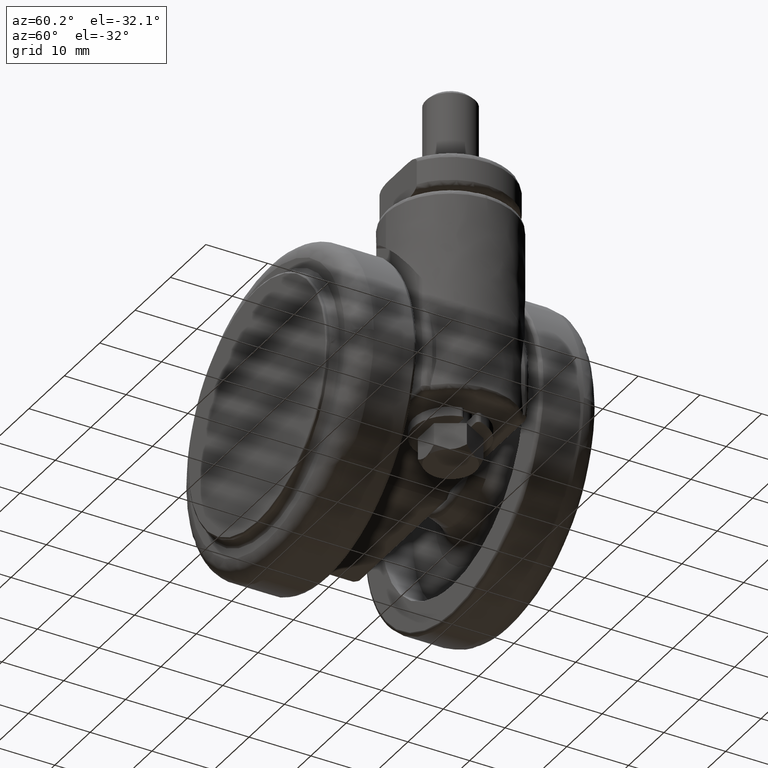
[diagram: clean part render]
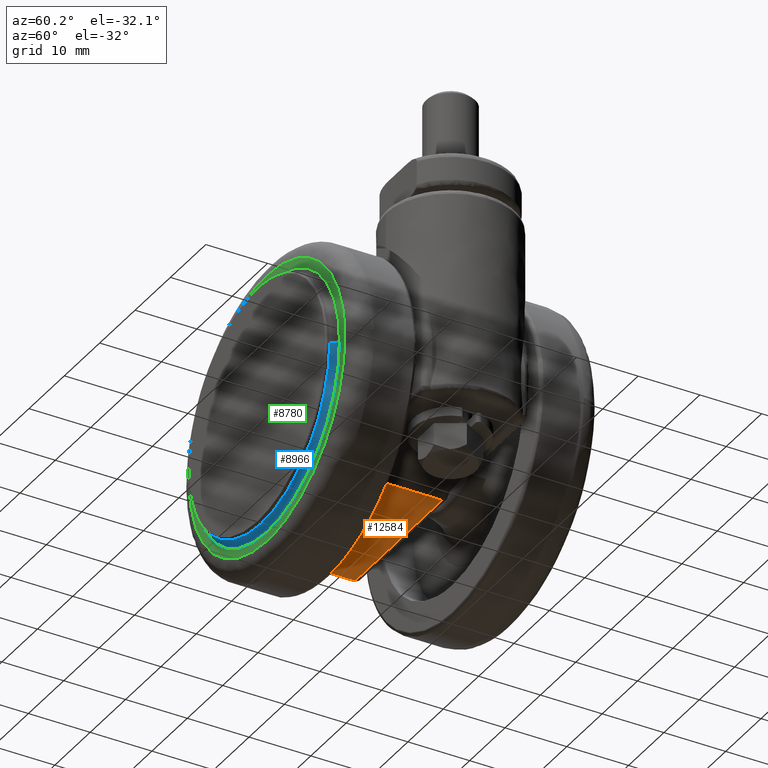
[diagram: same view with three faces highlighted in distinct colors, each labeled with its STEP entity id]
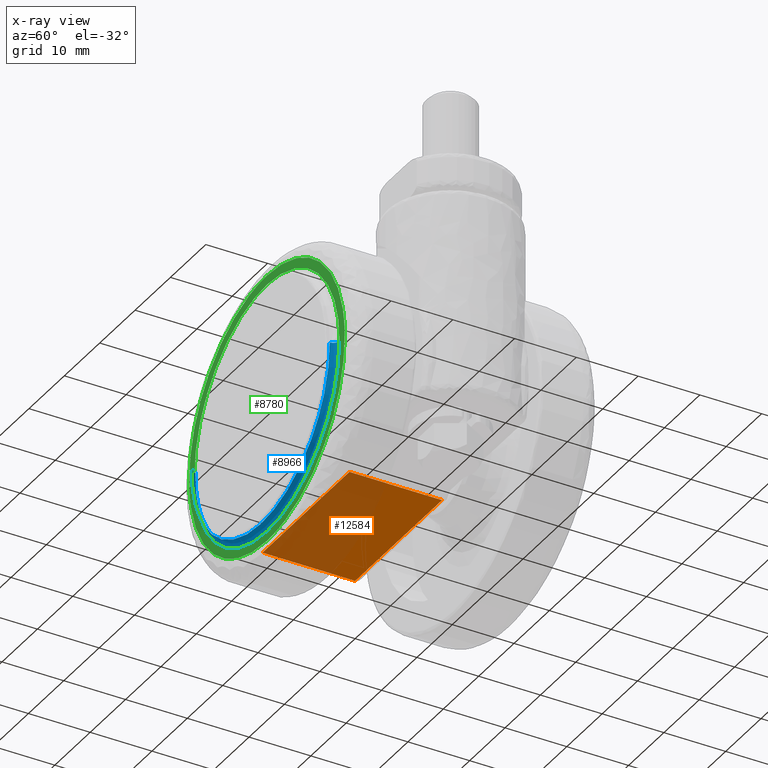
[diagram: x-ray of the same camera — body ghosted, the three highlighted faces saturated]
A machine part, auxiliary view with three faces highlighted in distinct colors.
The next image is the same camera in x-ray (body ghosted, the three faces saturated) — at least one of them is partly hidden behind the body in this view.
Their STEP definitions:

[orange] entity #12584 — the highlighted face is a freeform B-spline surface patch.
#12535=CARTESIAN_POINT('',(1.500000000000000,-7.500000000000000,-7.500000000000000));
#12536=VERTEX_POINT('',#12535);
#12542=CARTESIAN_POINT('',(1.500000000000000,7.500000000000000,-7.500000000000000));
#12543=VERTEX_POINT('',#12542);
#12544=CARTESIAN_POINT('',(1.500000000000000,7.500000000000000,-7.500000000000000));
#12545=CARTESIAN_POINT('',(1.500000000000000,-7.500000000000000,-7.500000000000000));
#12546=QUASI_UNIFORM_CURVE('',1,(#12544,#12545),.UNSPECIFIED.,.F.,.U.);
#12547=EDGE_CURVE('',#12543,#12536,#12546,.T.);
#12557=CARTESIAN_POINT('',(2.728921306024129,-8.249249970927089,-7.500000000000000));
#12558=CARTESIAN_POINT('',(-24.331952070224670,-8.249249970927089,-7.500000000000000));
#12559=CARTESIAN_POINT('',(2.728921306024129,8.249250373258443,-7.500000000000000));
#12560=CARTESIAN_POINT('',(-24.331952070224670,8.249250373258443,-7.500000000000000));
#12561=B_SPLINE_SURFACE_WITH_KNOTS('',1,1,((#12557,#12559),(#12558,#12560)),.UNSPECIFIED.,.F.,.F.,.U.,(2,2),(2,2),(0.0,27.060873376248800),(0.0,16.498500344185530),.UNSPECIFIED.);
#12562=CARTESIAN_POINT('',(-23.103030104295851,-7.500000000000000,-7.500000000000000));
#12563=VERTEX_POINT('',#12562);
#12564=CARTESIAN_POINT('',(-23.103030104295851,7.500000000000000,-7.500000000000000));
#12565=VERTEX_POINT('',#12564);
#12566=CARTESIAN_POINT('',(-23.103030104295851,-7.500000000000000,-7.500000000000000));
#12567=CARTESIAN_POINT('',(-23.103030104295851,7.500000000000000,-7.500000000000000));
#12568=QUASI_UNIFORM_CURVE('',1,(#12566,#12567),.UNSPECIFIED.,.F.,.U.);
#12569=EDGE_CURVE('',#12563,#12565,#12568,.T.);
#12570=ORIENTED_EDGE('',*,*,#12569,.T.);
#12571=CARTESIAN_POINT('',(-23.103030104295851,7.500000000000000,-7.500000000000000));
#12572=CARTESIAN_POINT('',(1.500000000000000,7.500000000000000,-7.500000000000000));
#12573=QUASI_UNIFORM_CURVE('',1,(#12571,#12572),.UNSPECIFIED.,.F.,.U.);
#12574=EDGE_CURVE('',#12565,#12543,#12573,.T.);
#12575=ORIENTED_EDGE('',*,*,#12574,.T.);
#12576=ORIENTED_EDGE('',*,*,#12547,.T.);
#12577=CARTESIAN_POINT('',(1.500000000000000,-7.500000000000000,-7.500000000000000));
#12578=CARTESIAN_POINT('',(-23.103030104295851,-7.500000000000000,-7.500000000000000));
#12579=QUASI_UNIFORM_CURVE('',1,(#12577,#12578),.UNSPECIFIED.,.F.,.U.);
#12580=EDGE_CURVE('',#12536,#12563,#12579,.T.);
#12581=ORIENTED_EDGE('',*,*,#12580,.T.);
#12582=EDGE_LOOP('',(#12570,#12575,#12576,#12581));
#12583=FACE_OUTER_BOUND('',#12582,.T.);
#12584=ADVANCED_FACE('',(#12583),#12561,.T.);

[blue] entity #8966 — the highlighted face is a freeform B-spline surface patch.
#8720=CARTESIAN_POINT('',(20.499999998863380,-20.0,8.874474E-016));
#8721=VERTEX_POINT('',#8720);
#8735=CARTESIAN_POINT('',(0.0,-20.0,-20.500000000000000));
#8736=VERTEX_POINT('',#8735);
#8737=CARTESIAN_POINT('',(20.499999998863380,-20.0,8.874474E-016));
#8738=CARTESIAN_POINT('',(20.499999999431690,-19.999999999999996,-20.500000000000007));
#8739=CARTESIAN_POINT('',(0.0,-20.0,-20.500000000000000));
#8747=(BOUNDED_CURVE()B_SPLINE_CURVE(2,(#8737,#8738,#8739),.UNSPECIFIED.,.F.,.U.)B_SPLINE_CURVE_WITH_KNOTS((3,3),(0.250000000000000,0.500000000000000),.UNSPECIFIED.)CURVE()GEOMETRIC_REPRESENTATION_ITEM()RATIONAL_B_SPLINE_CURVE((1.0,0.707106781186548,1.0))REPRESENTATION_ITEM(''));
#8748=EDGE_CURVE('',#8721,#8736,#8747,.T.);
#8750=CARTESIAN_POINT('',(-20.499999998863380,-20.0,-1.774895E-015));
#8751=VERTEX_POINT('',#8750);
#8752=CARTESIAN_POINT('',(0.0,-20.0,-20.500000000000000));
#8753=CARTESIAN_POINT('',(-20.499999999431690,-19.999999999999996,-20.500000000000007));
#8754=CARTESIAN_POINT('',(-20.499999998863380,-20.0,-1.774895E-015));
#8762=(BOUNDED_CURVE()B_SPLINE_CURVE(2,(#8752,#8753,#8754),.UNSPECIFIED.,.F.,.U.)B_SPLINE_CURVE_WITH_KNOTS((3,3),(0.500000000000000,0.750000000000000),.UNSPECIFIED.)CURVE()GEOMETRIC_REPRESENTATION_ITEM()RATIONAL_B_SPLINE_CURVE((1.0,0.707106781186548,1.0))REPRESENTATION_ITEM(''));
#8763=EDGE_CURVE('',#8736,#8751,#8762,.T.);
#8811=CARTESIAN_POINT('',(-19.500000000000000,-20.999999999800739,-1.774830E-015));
#8812=VERTEX_POINT('',#8811);
#8813=CARTESIAN_POINT('',(-20.499999998863384,-20.0,-3.549790E-015));
#8814=CARTESIAN_POINT('',(-19.500000000199254,-20.000000001136616,-3.539365E-015));
#8815=CARTESIAN_POINT('',(-19.499999999999993,-20.999999999800746,-3.549659E-015));
#8823=(BOUNDED_CURVE()B_SPLINE_CURVE(2,(#8813,#8814,#8815),.UNSPECIFIED.,.F.,.U.)B_SPLINE_CURVE_WITH_KNOTS((3,3),(-1.726807298352588,-0.285995334247499),.UNSPECIFIED.)CURVE()GEOMETRIC_REPRESENTATION_ITEM()RATIONAL_B_SPLINE_CURVE((0.882788775799720,0.622603437981812,0.878205638982627))REPRESENTATION_ITEM(''));
#8824=EDGE_CURVE('',#8751,#8812,#8823,.T.);
#8856=CARTESIAN_POINT('',(19.500000000000000,-20.999999999800739,2.663772E-015));
#8857=VERTEX_POINT('',#8856);
#8871=CARTESIAN_POINT('',(20.499999998863384,-20.0,1.774895E-015));
#8872=CARTESIAN_POINT('',(19.500000000199254,-20.000000001136616,1.769682E-015));
#8873=CARTESIAN_POINT('',(19.499999999999993,-20.999999999800746,1.774830E-015));
#8881=(BOUNDED_CURVE()B_SPLINE_CURVE(2,(#8871,#8872,#8873),.UNSPECIFIED.,.F.,.U.)B_SPLINE_CURVE_WITH_KNOTS((3,3),(-1.726807298352588,-0.285995334247499),.UNSPECIFIED.)CURVE()GEOMETRIC_REPRESENTATION_ITEM()RATIONAL_B_SPLINE_CURVE((0.882788775799720,0.622603437981812,0.878205638982627))REPRESENTATION_ITEM(''));
#8882=EDGE_CURVE('',#8721,#8857,#8881,.T.);
#8888=CARTESIAN_POINT('',(20.569350631787891,-20.002407653462296,0.575051940104742));
#8889=CARTESIAN_POINT('',(20.569350631787895,-20.002407653462292,0.289200449317159));
#8890=CARTESIAN_POINT('',(20.569350631787888,-20.002407653462289,-20.569350631787888));
#8891=CARTESIAN_POINT('',(2.518936E-015,-20.002407653462289,-20.569350631787895));
#8892=CARTESIAN_POINT('',(-20.569350631787888,-20.002407653462289,-20.569350631787888));
#8893=CARTESIAN_POINT('',(-20.569350631787891,-20.002407653462292,0.289200449317161));
#8894=CARTESIAN_POINT('',(-20.569350631787884,-20.002407653462292,0.575051940104749));
#8895=CARTESIAN_POINT('',(19.422260710472234,-19.922664248215789,0.542983048065546));
#8896=CARTESIAN_POINT('',(19.422260710472251,-19.922664248215799,0.273072622698316));
#8897=CARTESIAN_POINT('',(19.422260710472244,-19.922664248215781,-19.422260710472237));
#8898=CARTESIAN_POINT('',(2.378462E-015,-19.922664248215796,-19.422260710472234));
#8899=CARTESIAN_POINT('',(-19.422260710472237,-19.922664248215781,-19.422260710472244));
#8900=CARTESIAN_POINT('',(-19.422260710472248,-19.922664248215796,0.273072622698317));
#8901=CARTESIAN_POINT('',(-19.422260710472241,-19.922664248215799,0.542983048065554));
#8902=CARTESIAN_POINT('',(19.502433695225513,-21.069724225191706,0.545224423170267));
#8903=CARTESIAN_POINT('',(19.502433695225502,-21.069724225191713,0.274199836854407));
#8904=CARTESIAN_POINT('',(19.502433695225509,-21.069724225191706,-19.502433695225509));
#8905=CARTESIAN_POINT('',(2.388280E-015,-21.069724225191706,-19.502433695225502));
#8906=CARTESIAN_POINT('',(-19.502433695225509,-21.069724225191706,-19.502433695225509));
#8907=CARTESIAN_POINT('',(-19.502433695225513,-21.069724225191710,0.274199836854408));
#8908=CARTESIAN_POINT('',(-19.502433695225506,-21.069724225191713,0.545224423170274));
#8916=(BOUNDED_SURFACE()B_SPLINE_SURFACE(2,2,((#8888,#8895,#8902),(#8889,#8896,#8903),(#8890,#8897,#8904),(#8891,#8898,#8905),(#8892,#8899,#8906),(#8893,#8900,#8907),(#8894,#8901,#8908)),.UNSPECIFIED.,.F.,.F.,.U.)B_SPLINE_SURFACE_WITH_KNOTS((3,1,2,1,3),(3,3),(0.0,0.681608320071516,34.762024323648063,68.842440327224608,69.524048647296141),(0.0,1.822727258770271),.UNSPECIFIED.)GEOMETRIC_REPRESENTATION_ITEM()RATIONAL_B_SPLINE_SURFACE(((0.920730318469245,0.602530283667150,0.915630244211508),(0.915399262344060,0.599041615275418,0.910328717669053),(0.643515399959645,0.421119527297086,0.639950864003831),(0.910068206218876,0.595552946883686,0.905027191126598),(0.643515399959645,0.421119527297086,0.639950864003831),(0.915399262344060,0.599041615275418,0.910328717669053),(0.920730318469245,0.602530283667150,0.915630244211508)))REPRESENTATION_ITEM('')SURFACE());
#8917=ORIENTED_EDGE('',*,*,#8763,.F.);
#8918=ORIENTED_EDGE('',*,*,#8748,.F.);
#8919=ORIENTED_EDGE('',*,*,#8882,.T.);
#8920=CARTESIAN_POINT('',(14.144800822501709,-20.999999999896961,-13.422913606656129));
#8921=VERTEX_POINT('',#8920);
#8922=CARTESIAN_POINT('',(19.500000000000004,-20.999999999800732,2.663772E-015));
#8923=CARTESIAN_POINT('',(19.499999999999996,-20.999999999840487,-7.779710651600523));
#8924=CARTESIAN_POINT('',(14.144800822501725,-20.999999999896684,-13.422913606656142));
#8932=(BOUNDED_CURVE()B_SPLINE_CURVE(2,(#8922,#8923,#8924),.UNSPECIFIED.,.F.,.U.)B_SPLINE_CURVE_WITH_KNOTS((3,3),(0.250000000000000,0.371049520050849),.UNSPECIFIED.)CURVE()GEOMETRIC_REPRESENTATION_ITEM()RATIONAL_B_SPLINE_CURVE((1.000000000000000,0.858181665745933,0.853699661858792))REPRESENTATION_ITEM(''));
#8933=EDGE_CURVE('',#8857,#8921,#8932,.T.);
#8934=ORIENTED_EDGE('',*,*,#8933,.T.);
#8935=CARTESIAN_POINT('',(0.0,-21.0,-19.500000000000000));
#8936=VERTEX_POINT('',#8935);
#8937=CARTESIAN_POINT('',(14.144800822501702,-20.999999999896964,-13.422913606656131));
#8938=CARTESIAN_POINT('',(8.377861672091482,-20.999999999957190,-19.500000000000004));
#8939=CARTESIAN_POINT('',(0.0,-21.0,-19.500000000000000));
#8947=(BOUNDED_CURVE()B_SPLINE_CURVE(2,(#8937,#8938,#8939),.UNSPECIFIED.,.F.,.U.)B_SPLINE_CURVE_WITH_KNOTS((3,3),(0.371049520050849,0.500000000000000),.UNSPECIFIED.)CURVE()GEOMETRIC_REPRESENTATION_ITEM()RATIONAL_B_SPLINE_CURVE((0.853699661858792,0.848925115440614,1.0))REPRESENTATION_ITEM(''));
#8948=EDGE_CURVE('',#8921,#8936,#8947,.T.);
#8949=ORIENTED_EDGE('',*,*,#8948,.T.);
#8950=CARTESIAN_POINT('',(0.0,-21.0,-19.500000000000000));
#8951=CARTESIAN_POINT('',(-19.500000000000004,-20.999999999900371,-19.500000000000004));
#8952=CARTESIAN_POINT('',(-19.500000000000000,-20.999999999800739,-1.774830E-015));
#8960=(BOUNDED_CURVE()B_SPLINE_CURVE(2,(#8950,#8951,#8952),.UNSPECIFIED.,.F.,.U.)B_SPLINE_CURVE_WITH_KNOTS((3,3),(0.500000000000000,0.750000000000000),.UNSPECIFIED.)CURVE()GEOMETRIC_REPRESENTATION_ITEM()RATIONAL_B_SPLINE_CURVE((1.0,0.707106781186548,1.0))REPRESENTATION_ITEM(''));
#8961=EDGE_CURVE('',#8936,#8812,#8960,.T.);
#8962=ORIENTED_EDGE('',*,*,#8961,.T.);
#8963=ORIENTED_EDGE('',*,*,#8824,.F.);
#8964=EDGE_LOOP('',(#8917,#8918,#8919,#8934,#8949,#8962,#8963));
#8965=FACE_OUTER_BOUND('',#8964,.T.);
#8966=ADVANCED_FACE('',(#8965),#8916,.F.);

[green] entity #8780 — the highlighted face is a freeform B-spline surface patch.
#8576=CARTESIAN_POINT('',(-21.998262973218552,-20.0,-0.276452877469161));
#8577=VERTEX_POINT('',#8576);
#8591=CARTESIAN_POINT('',(0.0,-20.0,22.0));
#8592=VERTEX_POINT('',#8591);
#8593=CARTESIAN_POINT('',(-21.998262973218548,-20.000000000000007,-0.276452877469161));
#8594=CARTESIAN_POINT('',(-22.000000000732651,-20.000000000000004,-0.138231895843866));
#8595=CARTESIAN_POINT('',(-22.000000000730338,-20.0,-9.175187E-012));
#8596=CARTESIAN_POINT('',(-22.000000000362878,-19.999999999999996,21.999999999995435));
#8597=CARTESIAN_POINT('',(0.0,-20.0,22.0));
#8605=(BOUNDED_CURVE()B_SPLINE_CURVE(2,(#8593,#8594,#8595,#8596,#8597),.UNSPECIFIED.,.F.,.U.)B_SPLINE_CURVE_WITH_KNOTS((3,2,3),(0.747784295921519,0.750000000000000,1.0),.UNSPECIFIED.)CURVE()GEOMETRIC_REPRESENTATION_ITEM()RATIONAL_B_SPLINE_CURVE((0.994854295643531,0.997404141202062,1.0,0.707106781186548,1.0))REPRESENTATION_ITEM(''));
#8606=EDGE_CURVE('',#8577,#8592,#8605,.T.);
#8608=CARTESIAN_POINT('',(21.998262973218552,-20.0,0.276452877469155));
#8609=VERTEX_POINT('',#8608);
#8610=CARTESIAN_POINT('',(0.0,-20.0,22.0));
#8611=CARTESIAN_POINT('',(21.725262458302542,-19.999999999999996,22.000000000004619));
#8612=CARTESIAN_POINT('',(21.998262973218552,-20.0,0.276452877469155));
#8620=(BOUNDED_CURVE()B_SPLINE_CURVE(2,(#8610,#8611,#8612),.UNSPECIFIED.,.F.,.U.)B_SPLINE_CURVE_WITH_KNOTS((3,3),(0.0,0.247784295921519),.UNSPECIFIED.)CURVE()GEOMETRIC_REPRESENTATION_ITEM()RATIONAL_B_SPLINE_CURVE((1.0,0.709702639984485,0.994854295643531))REPRESENTATION_ITEM(''));
#8621=EDGE_CURVE('',#8592,#8609,#8620,.T.);
#8673=CARTESIAN_POINT('',(0.0,-20.0,-22.0));
#8674=VERTEX_POINT('',#8673);
#8675=CARTESIAN_POINT('',(21.998262973218552,-20.0,0.276452877469155));
#8676=CARTESIAN_POINT('',(22.000000000732648,-20.000000000000004,0.138231895843864));
#8677=CARTESIAN_POINT('',(22.000000000730331,-20.0,9.176786E-012));
#8678=CARTESIAN_POINT('',(22.000000000362878,-19.999999999999996,-21.999999999995435));
#8679=CARTESIAN_POINT('',(0.0,-20.0,-22.0));
#8687=(BOUNDED_CURVE()B_SPLINE_CURVE(2,(#8675,#8676,#8677,#8678,#8679),.UNSPECIFIED.,.F.,.U.)B_SPLINE_CURVE_WITH_KNOTS((3,2,3),(0.247784295921519,0.250000000000000,0.500000000000000),.UNSPECIFIED.)CURVE()GEOMETRIC_REPRESENTATION_ITEM()RATIONAL_B_SPLINE_CURVE((0.994854295643531,0.997404141202062,1.0,0.707106781186548,1.0))REPRESENTATION_ITEM(''));
#8688=EDGE_CURVE('',#8609,#8674,#8687,.T.);
#8690=CARTESIAN_POINT('',(0.0,-20.0,-22.0));
#8691=CARTESIAN_POINT('',(-21.725262458302527,-19.999999999999993,-22.000000000004615));
#8692=CARTESIAN_POINT('',(-21.998262973218548,-20.000000000000007,-0.276452877469161));
#8700=(BOUNDED_CURVE()B_SPLINE_CURVE(2,(#8690,#8691,#8692),.UNSPECIFIED.,.F.,.U.)B_SPLINE_CURVE_WITH_KNOTS((3,3),(0.500000000000000,0.747784295921519),.UNSPECIFIED.)CURVE()GEOMETRIC_REPRESENTATION_ITEM()RATIONAL_B_SPLINE_CURVE((1.0,0.709702639984485,0.994854295643531))REPRESENTATION_ITEM(''));
#8701=EDGE_CURVE('',#8674,#8577,#8700,.T.);
#8707=CARTESIAN_POINT('',(-24.195889358969279,-20.0,-24.197799914719461));
#8708=CARTESIAN_POINT('',(-24.195889358969279,-20.0,24.197801094891432));
#8709=CARTESIAN_POINT('',(24.195890539048062,-20.0,-24.197799914719461));
#8710=CARTESIAN_POINT('',(24.195890539048062,-20.0,24.197801094891432));
#8711=B_SPLINE_SURFACE_WITH_KNOTS('',1,1,((#8707,#8709),(#8708,#8710)),.UNSPECIFIED.,.F.,.F.,.U.,(2,2),(2,2),(0.0,48.395601009610893),(0.0,48.391779898017340),.UNSPECIFIED.);
#8712=ORIENTED_EDGE('',*,*,#8606,.F.);
#8713=ORIENTED_EDGE('',*,*,#8701,.F.);
#8714=ORIENTED_EDGE('',*,*,#8688,.F.);
#8715=ORIENTED_EDGE('',*,*,#8621,.F.);
#8716=EDGE_LOOP('',(#8712,#8713,#8714,#8715));
#8717=FACE_OUTER_BOUND('',#8716,.T.);
#8718=CARTESIAN_POINT('',(0.0,-20.0,20.500000000000000));
#8719=VERTEX_POINT('',#8718);
#8720=CARTESIAN_POINT('',(20.499999998863380,-20.0,8.874474E-016));
#8721=VERTEX_POINT('',#8720);
#8722=CARTESIAN_POINT('',(0.0,-20.0,20.500000000000000));
#8723=CARTESIAN_POINT('',(20.499999999431690,-19.999999999999996,20.500000000000007));
#8724=CARTESIAN_POINT('',(20.499999998863380,-20.0,8.874474E-016));
#8732=(BOUNDED_CURVE()B_SPLINE_CURVE(2,(#8722,#8723,#8724),.UNSPECIFIED.,.F.,.U.)B_SPLINE_CURVE_WITH_KNOTS((3,3),(0.0,0.250000000000000),.UNSPECIFIED.)CURVE()GEOMETRIC_REPRESENTATION_ITEM()RATIONAL_B_SPLINE_CURVE((1.0,0.707106781186548,1.0))REPRESENTATION_ITEM(''));
#8733=EDGE_CURVE('',#8719,#8721,#8732,.T.);
#8734=ORIENTED_EDGE('',*,*,#8733,.T.);
#8735=CARTESIAN_POINT('',(0.0,-20.0,-20.500000000000000));
#8736=VERTEX_POINT('',#8735);
#8737=CARTESIAN_POINT('',(20.499999998863380,-20.0,8.874474E-016));
#8738=CARTESIAN_POINT('',(20.499999999431690,-19.999999999999996,-20.500000000000007));
#8739=CARTESIAN_POINT('',(0.0,-20.0,-20.500000000000000));
#8747=(BOUNDED_CURVE()B_SPLINE_CURVE(2,(#8737,#8738,#8739),.UNSPECIFIED.,.F.,.U.)B_SPLINE_CURVE_WITH_KNOTS((3,3),(0.250000000000000,0.500000000000000),.UNSPECIFIED.)CURVE()GEOMETRIC_REPRESENTATION_ITEM()RATIONAL_B_SPLINE_CURVE((1.0,0.707106781186548,1.0))REPRESENTATION_ITEM(''));
#8748=EDGE_CURVE('',#8721,#8736,#8747,.T.);
#8749=ORIENTED_EDGE('',*,*,#8748,.T.);
#8750=CARTESIAN_POINT('',(-20.499999998863380,-20.0,-1.774895E-015));
#8751=VERTEX_POINT('',#8750);
#8752=CARTESIAN_POINT('',(0.0,-20.0,-20.500000000000000));
#8753=CARTESIAN_POINT('',(-20.499999999431690,-19.999999999999996,-20.500000000000007));
#8754=CARTESIAN_POINT('',(-20.499999998863380,-20.0,-1.774895E-015));
#8762=(BOUNDED_CURVE()B_SPLINE_CURVE(2,(#8752,#8753,#8754),.UNSPECIFIED.,.F.,.U.)B_SPLINE_CURVE_WITH_KNOTS((3,3),(0.500000000000000,0.750000000000000),.UNSPECIFIED.)CURVE()GEOMETRIC_REPRESENTATION_ITEM()RATIONAL_B_SPLINE_CURVE((1.0,0.707106781186548,1.0))REPRESENTATION_ITEM(''));
#8763=EDGE_CURVE('',#8736,#8751,#8762,.T.);
#8764=ORIENTED_EDGE('',*,*,#8763,.T.);
#8765=CARTESIAN_POINT('',(-20.499999998863380,-20.0,-1.774895E-015));
#8766=CARTESIAN_POINT('',(-20.499999999431690,-19.999999999999996,20.500000000000007));
#8767=CARTESIAN_POINT('',(0.0,-20.0,20.500000000000000));
#8775=(BOUNDED_CURVE()B_SPLINE_CURVE(2,(#8765,#8766,#8767),.UNSPECIFIED.,.F.,.U.)B_SPLINE_CURVE_WITH_KNOTS((3,3),(0.750000000000000,1.0),.UNSPECIFIED.)CURVE()GEOMETRIC_REPRESENTATION_ITEM()RATIONAL_B_SPLINE_CURVE((1.0,0.707106781186548,1.0))REPRESENTATION_ITEM(''));
#8776=EDGE_CURVE('',#8751,#8719,#8775,.T.);
#8777=ORIENTED_EDGE('',*,*,#8776,.T.);
#8778=EDGE_LOOP('',(#8734,#8749,#8764,#8777));
#8779=FACE_BOUND('',#8778,.T.);
#8780=ADVANCED_FACE('',(#8717,#8779),#8711,.F.);